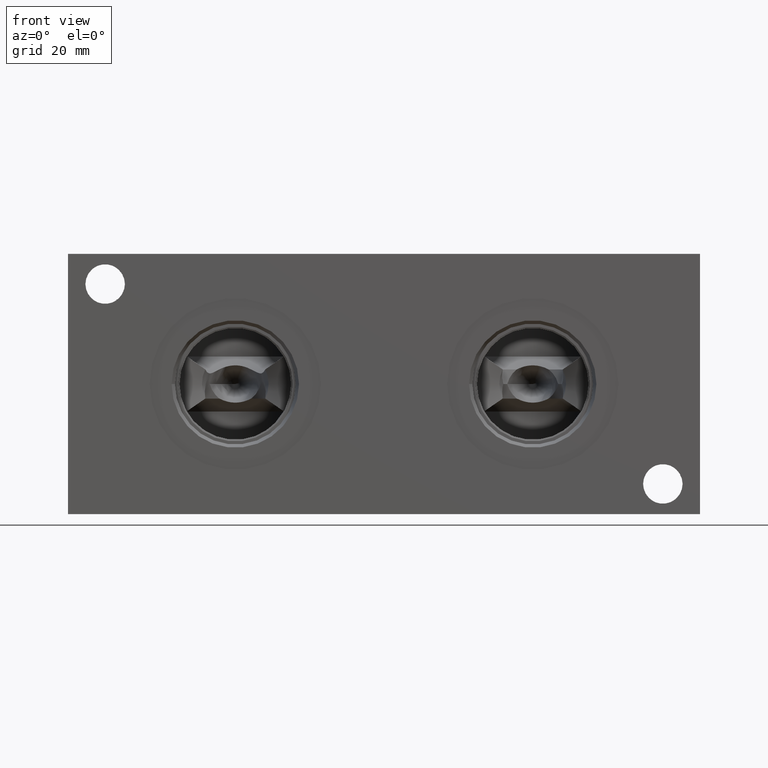
[diagram: clean part render]
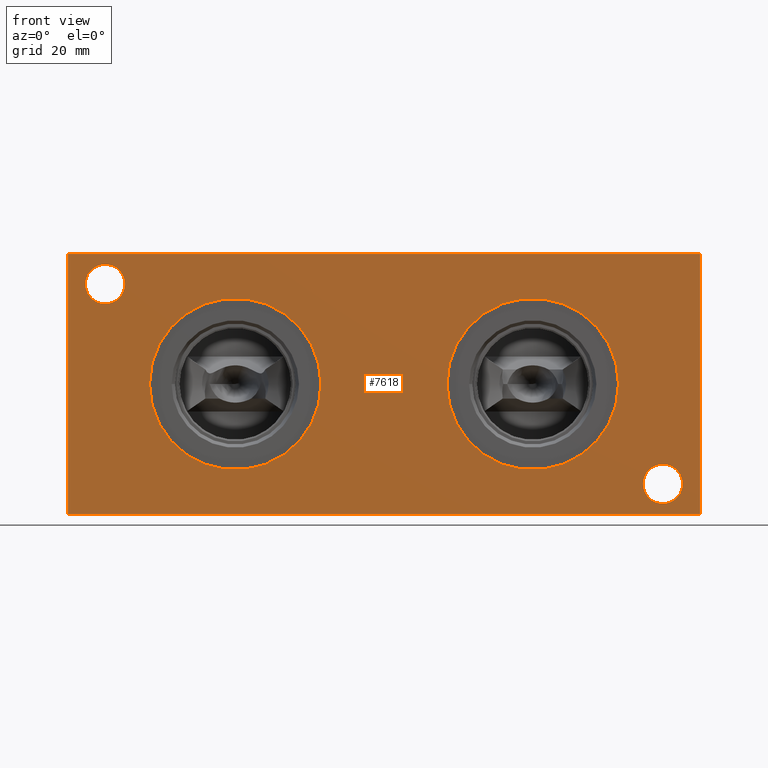
[diagram: same view with one face highlighted and labeled with its STEP entity id]
A machine part, front view. The second image highlights one B-rep face of the part: STEP entity #7618.
In plain terms, the highlighted planar face has unit normal (0, -1, 0).
Its self-contained STEP definition (entity closure, byte-faithful):
#194=CIRCLE('',#7988,6.7437);
#195=CIRCLE('',#7989,6.7437);
#197=CIRCLE('',#7997,6.7437);
#198=CIRCLE('',#7998,6.7437);
#220=CIRCLE('',#8040,29.2862);
#221=CIRCLE('',#8041,29.2862);
#225=CIRCLE('',#8048,29.2862);
#226=CIRCLE('',#8049,29.2862);
#286=FACE_BOUND('',#1427,.T.);
#287=FACE_BOUND('',#1428,.T.);
#288=FACE_BOUND('',#1429,.T.);
#289=FACE_BOUND('',#1430,.T.);
#992=FACE_OUTER_BOUND('',#1426,.T.);
#1426=EDGE_LOOP('',(#6690,#6691,#6692,#6693));
#1427=EDGE_LOOP('',(#6694,#6695));
#1428=EDGE_LOOP('',(#6696,#6697));
#1429=EDGE_LOOP('',(#6698,#6699));
#1430=EDGE_LOOP('',(#6700,#6701));
#1689=LINE('',#11726,#2383);
#2124=LINE('',#13224,#2818);
#2129=LINE('',#13233,#2823);
#2130=LINE('',#13235,#2824);
#2383=VECTOR('',#8468,10.);
#2818=VECTOR('',#9661,10.);
#2823=VECTOR('',#9670,10.);
#2824=VECTOR('',#9673,10.);
#3113=VERTEX_POINT('',#11724);
#3114=VERTEX_POINT('',#11725);
#3472=VERTEX_POINT('',#13049);
#3473=VERTEX_POINT('',#13050);
#3477=VERTEX_POINT('',#13065);
#3478=VERTEX_POINT('',#13066);
#3502=VERTEX_POINT('',#13146);
#3503=VERTEX_POINT('',#13147);
#3507=VERTEX_POINT('',#13161);
#3508=VERTEX_POINT('',#13162);
#3526=VERTEX_POINT('',#13222);
#3528=VERTEX_POINT('',#13231);
#3961=EDGE_CURVE('',#3113,#3114,#1689,.T.);
#4498=EDGE_CURVE('',#3472,#3473,#194,.T.);
#4499=EDGE_CURVE('',#3473,#3472,#195,.T.);
#4507=EDGE_CURVE('',#3477,#3478,#197,.T.);
#4508=EDGE_CURVE('',#3478,#3477,#198,.T.);
#4547=EDGE_CURVE('',#3502,#3503,#220,.T.);
#4548=EDGE_CURVE('',#3503,#3502,#221,.T.);
#4554=EDGE_CURVE('',#3507,#3508,#225,.T.);
#4555=EDGE_CURVE('',#3508,#3507,#226,.T.);
#4584=EDGE_CURVE('',#3526,#3113,#2124,.T.);
#4589=EDGE_CURVE('',#3528,#3114,#2129,.T.);
#4590=EDGE_CURVE('',#3526,#3528,#2130,.T.);
#6690=ORIENTED_EDGE('',*,*,#4590,.T.);
#6691=ORIENTED_EDGE('',*,*,#4589,.T.);
#6692=ORIENTED_EDGE('',*,*,#3961,.F.);
#6693=ORIENTED_EDGE('',*,*,#4584,.F.);
#6694=ORIENTED_EDGE('',*,*,#4498,.T.);
#6695=ORIENTED_EDGE('',*,*,#4499,.T.);
#6696=ORIENTED_EDGE('',*,*,#4507,.T.);
#6697=ORIENTED_EDGE('',*,*,#4508,.T.);
#6698=ORIENTED_EDGE('',*,*,#4547,.T.);
#6699=ORIENTED_EDGE('',*,*,#4548,.T.);
#6700=ORIENTED_EDGE('',*,*,#4554,.T.);
#6701=ORIENTED_EDGE('',*,*,#4555,.T.);
#6932=PLANE('',#8081);
#7618=ADVANCED_FACE('',(#992,#286,#287,#288,#289),#6932,.T.);
#7988=AXIS2_PLACEMENT_3D('',#13051,#9450,#9451);
#7989=AXIS2_PLACEMENT_3D('',#13052,#9452,#9453);
#7997=AXIS2_PLACEMENT_3D('',#13067,#9470,#9471);
#7998=AXIS2_PLACEMENT_3D('',#13068,#9472,#9473);
#8040=AXIS2_PLACEMENT_3D('',#13148,#9569,#9570);
#8041=AXIS2_PLACEMENT_3D('',#13149,#9571,#9572);
#8048=AXIS2_PLACEMENT_3D('',#13163,#9587,#9588);
#8049=AXIS2_PLACEMENT_3D('',#13164,#9589,#9590);
#8081=AXIS2_PLACEMENT_3D('',#13234,#9671,#9672);
#8468=DIRECTION('',(1.,0.,0.));
#9450=DIRECTION('center_axis',(0.,1.,0.));
#9451=DIRECTION('ref_axis',(1.,0.,0.));
#9452=DIRECTION('center_axis',(0.,1.,0.));
#9453=DIRECTION('ref_axis',(1.,0.,0.));
#9470=DIRECTION('center_axis',(0.,1.,0.));
#9471=DIRECTION('ref_axis',(1.,0.,0.));
#9472=DIRECTION('center_axis',(0.,1.,0.));
#9473=DIRECTION('ref_axis',(1.,0.,0.));
#9569=DIRECTION('center_axis',(0.,1.,0.));
#9570=DIRECTION('ref_axis',(1.,0.,0.));
#9571=DIRECTION('center_axis',(0.,1.,0.));
#9572=DIRECTION('ref_axis',(1.,0.,0.));
#9587=DIRECTION('center_axis',(0.,1.,0.));
#9588=DIRECTION('ref_axis',(1.,0.,0.));
#9589=DIRECTION('center_axis',(0.,1.,0.));
#9590=DIRECTION('ref_axis',(1.,0.,0.));
#9661=DIRECTION('',(0.,0.,1.));
#9670=DIRECTION('',(0.,0.,1.));
#9671=DIRECTION('center_axis',(0.,-1.,0.));
#9672=DIRECTION('ref_axis',(1.,0.,0.));
#9673=DIRECTION('',(1.,0.,0.));
#11724=CARTESIAN_POINT('',(0.,0.,88.9));
#11725=CARTESIAN_POINT('',(215.9,0.,88.9));
#11726=CARTESIAN_POINT('',(0.,0.,88.9));
#13049=CARTESIAN_POINT('',(19.4437,0.,78.5876));
#13050=CARTESIAN_POINT('',(5.9563,0.,78.5876));
#13051=CARTESIAN_POINT('Origin',(12.7,0.,78.5876));
#13052=CARTESIAN_POINT('Origin',(12.7,0.,78.5876));
#13065=CARTESIAN_POINT('',(209.9437,0.,10.3124));
#13066=CARTESIAN_POINT('',(196.4563,0.,10.3124));
#13067=CARTESIAN_POINT('Origin',(203.2,0.,10.3124));
#13068=CARTESIAN_POINT('Origin',(203.2,0.,10.3124));
#13146=CARTESIAN_POINT('',(86.4362,0.,44.45));
#13147=CARTESIAN_POINT('',(27.8638,0.,44.45));
#13148=CARTESIAN_POINT('Origin',(57.15,0.,44.45));
#13149=CARTESIAN_POINT('Origin',(57.15,0.,44.45));
#13161=CARTESIAN_POINT('',(188.0362,0.,44.45));
#13162=CARTESIAN_POINT('',(129.4638,0.,44.45));
#13163=CARTESIAN_POINT('Origin',(158.75,0.,44.45));
#13164=CARTESIAN_POINT('Origin',(158.75,0.,44.45));
#13222=CARTESIAN_POINT('',(0.,0.,0.));
#13224=CARTESIAN_POINT('',(0.,0.,0.));
#13231=CARTESIAN_POINT('',(215.9,0.,0.));
#13233=CARTESIAN_POINT('',(215.9,0.,0.));
#13234=CARTESIAN_POINT('Origin',(0.,0.,0.));
#13235=CARTESIAN_POINT('',(0.,0.,0.));